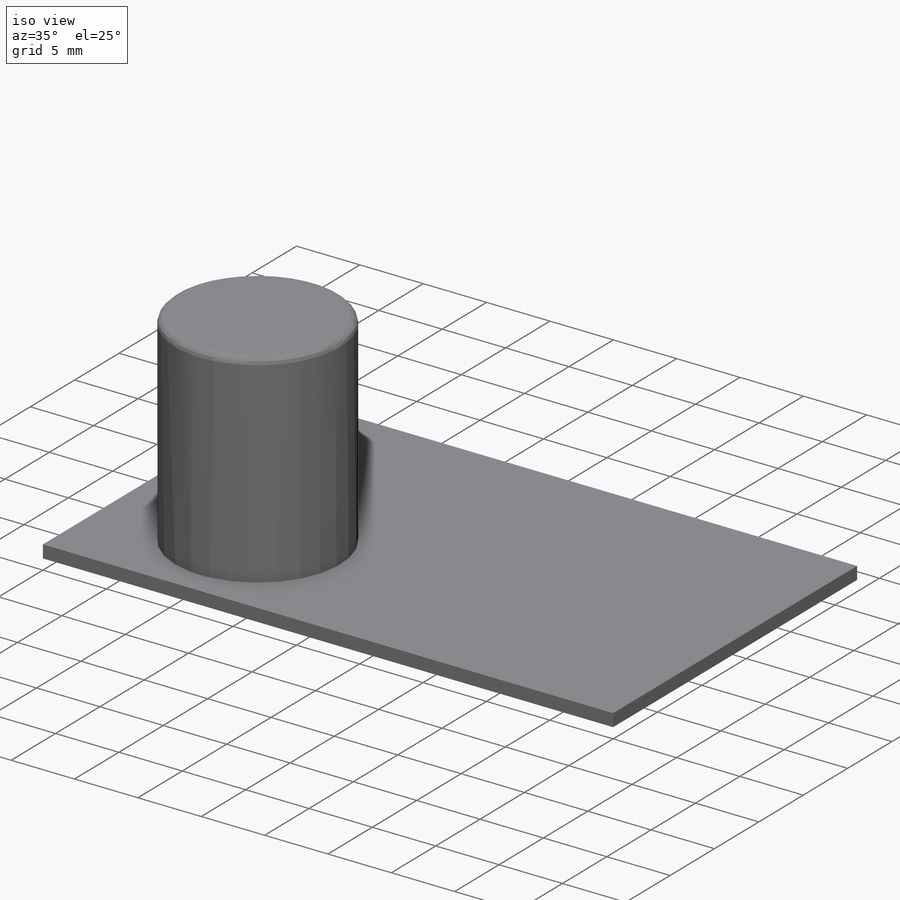
[diagram: iso view]
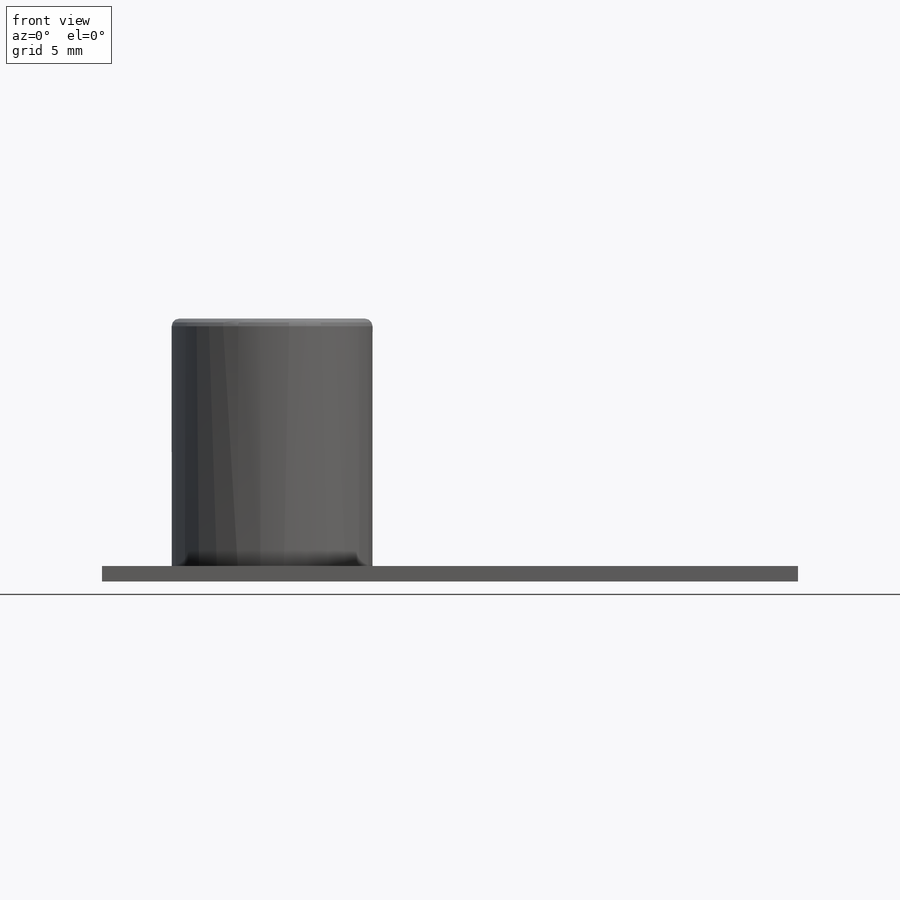
[diagram: front view]
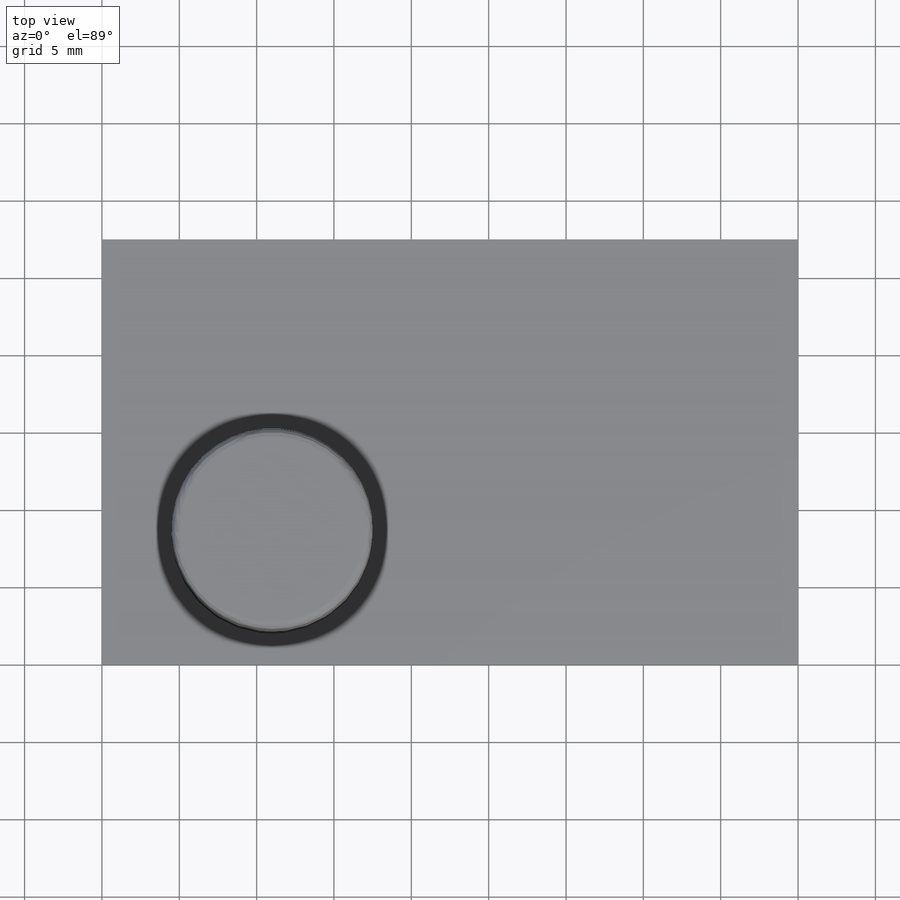
[diagram: top view]
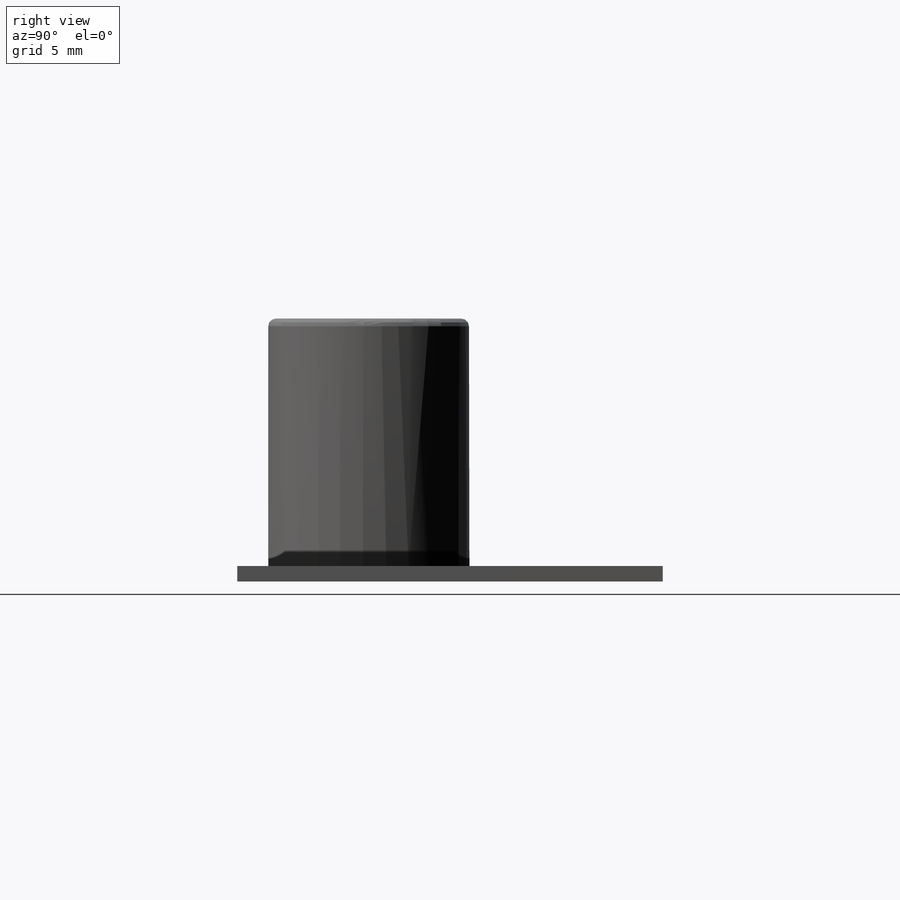
[diagram: right view]
SOLIDWORKS PART (.sldprt)
format: sldprt  version: not decoded by parser v0  size: 415,744 bytes
history: native  units: mm
features: plane x3, sketch x2, extrude x2, material x1, fillet x1 (+8 scaffold rows collapsed)
feature tree (17):
  scaffold x8  (default folders/planes/origin — collapsed)
  material  "Материал <не указан>"
  plane  "Спереди"
  plane  "Сверху"
  plane  "Справа"
  sketch  "Эскиз1"  dims[D1=27.5mm D2=45.0mm]
  extrude  "Бобышка-Вытянуть1"  Depth=1mm
  sketch  "Эскиз2"  dims[D1=13.0mm D2=4.5mm D3=2.0mm]
  extrude  "Бобышка-Вытянуть2"  Depth=16mm
  fillet  "Скругление1"  Radius=0.5mm
decode coverage: 5 of 5 modeling features carry decoded parameters
note: suppression state not decoded; provenance and decode notes live in map.json
